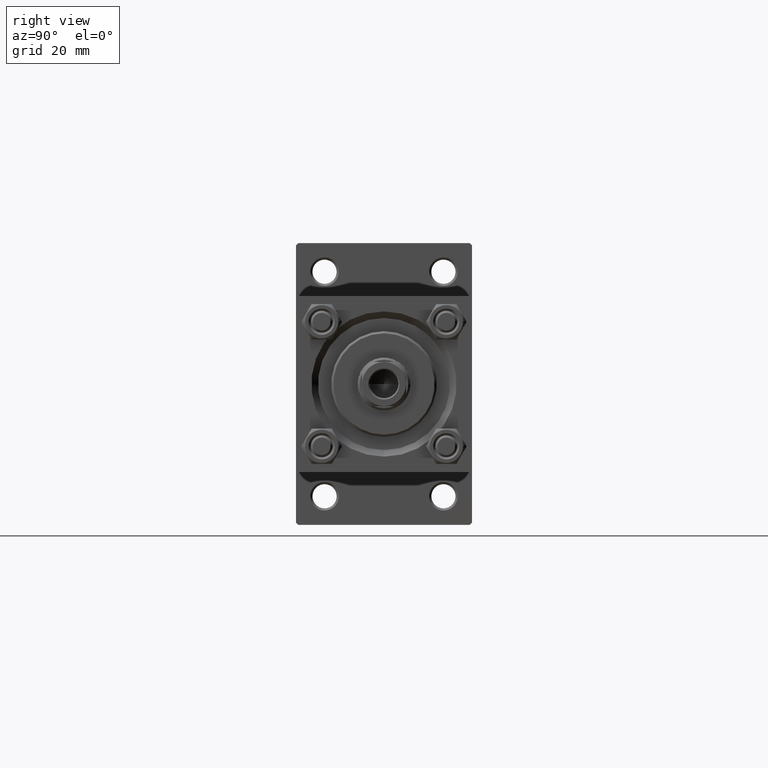
[diagram: clean part render]
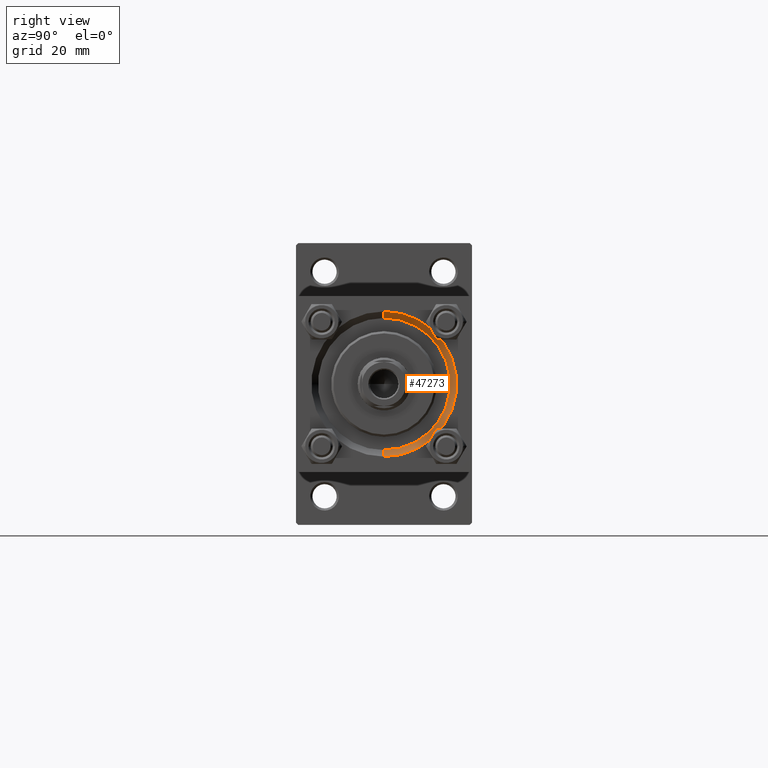
[diagram: same view with one face highlighted and labeled with its STEP entity id]
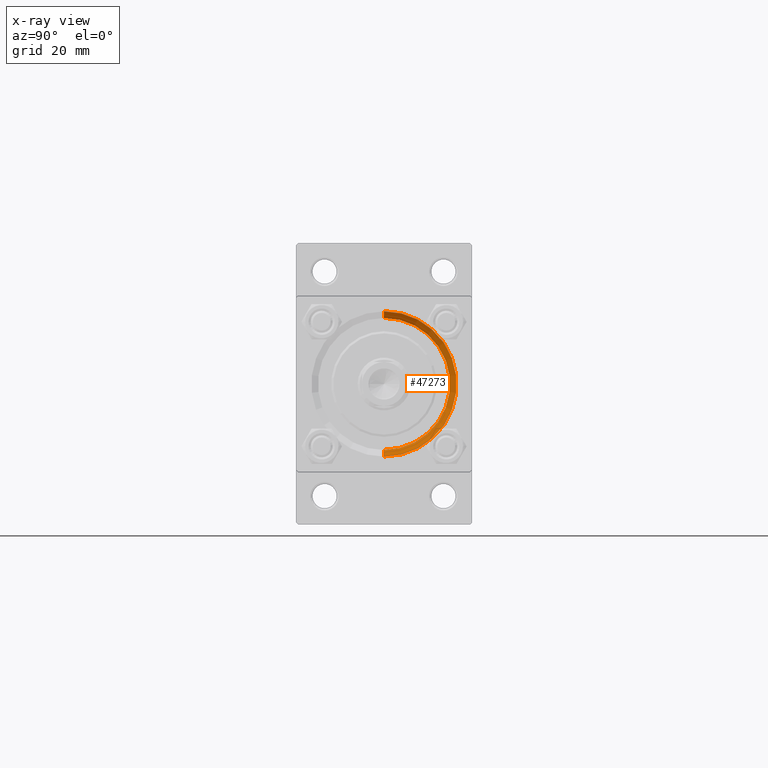
[diagram: x-ray of the same camera — body ghosted, the highlighted face saturated]
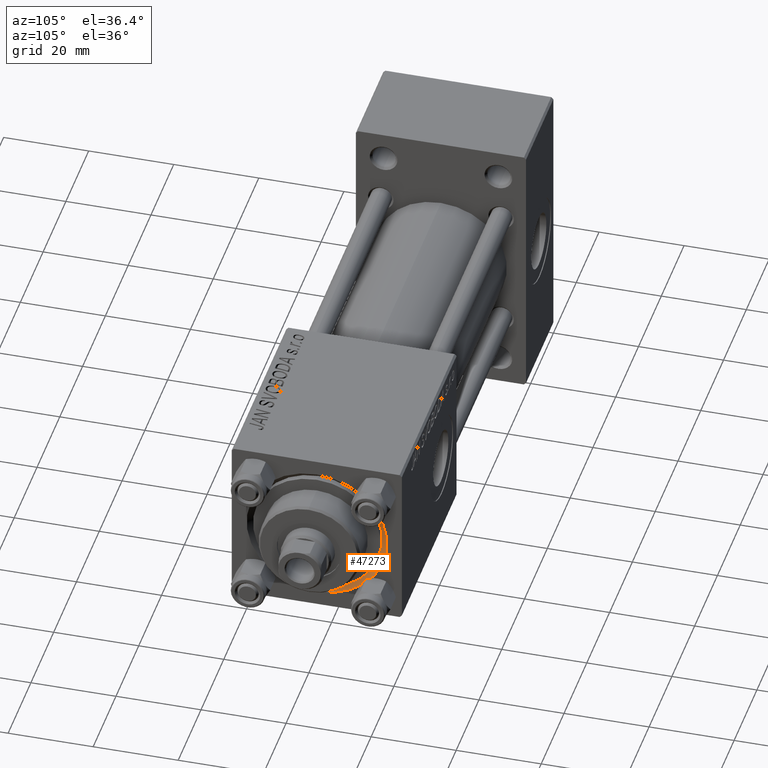
[diagram: same view with one face highlighted and labeled with its STEP entity id]
A machine part, right view. The second image highlights one B-rep face of the part: STEP entity #47273.
The next image is the same camera in x-ray: the body ghosted, the highlighted face saturated — about 0% of this face is hidden behind the body in this view.
A second angle (auxiliary view) of the same face is appended — the face is thin or edge-on in the first view.
In plain terms, the highlighted conical surface has half-angle 45 deg.
Its self-contained STEP definition (entity closure, byte-faithful):
#165 = CIRCLE ( 'NONE', #16254, 16.50000000000002842 ) ;
#410 = VERTEX_POINT ( 'NONE', #14507 ) ;
#2702 = CARTESIAN_POINT ( 'NONE',  ( 133.0000000000000000, 0.000000000000000000, -16.50000000000002842 ) ) ;
#4811 = VECTOR ( 'NONE', #5578, 1000.000000000000114 ) ;
#5578 = DIRECTION ( 'NONE',  ( 0.7071067811865474617, 0.000000000000000000, -0.7071067811865474617 ) ) ;
#8197 = CARTESIAN_POINT ( 'NONE',  ( 131.4999999999999716, 0.000000000000000000, 0.000000000000000000 ) ) ;
#9367 = CARTESIAN_POINT ( 'NONE',  ( 131.4999999999999716, 0.000000000000000000, -15.00000000000000000 ) ) ;
#9425 = DIRECTION ( 'NONE',  ( 1.000000000000000000, 0.000000000000000000, 0.000000000000000000 ) ) ;
#9763 = CIRCLE ( 'NONE', #30746, 15.00000000000000000 ) ;
#9935 = FACE_OUTER_BOUND ( 'NONE', #42377, .T. ) ;
#9968 = VECTOR ( 'NONE', #19424, 1000.000000000000114 ) ;
#11300 = ORIENTED_EDGE ( 'NONE', *, *, #45463, .F. ) ;
#14507 = CARTESIAN_POINT ( 'NONE',  ( 131.4999999999999716, 0.000000000000000000, -15.00000000000000000 ) ) ;
#14781 = ORIENTED_EDGE ( 'NONE', *, *, #16562, .F. ) ;
#15253 = ORIENTED_EDGE ( 'NONE', *, *, #16930, .F. ) ;
#15789 = DIRECTION ( 'NONE',  ( 1.000000000000000000, 0.000000000000000000, 0.000000000000000000 ) ) ;
#16254 = AXIS2_PLACEMENT_3D ( 'NONE', #31742, #27956, #20127 ) ;
#16562 = EDGE_CURVE ( 'NONE', #410, #42587, #9763, .T. ) ;
#16930 = EDGE_CURVE ( 'NONE', #30599, #24638, #165, .T. ) ;
#19424 = DIRECTION ( 'NONE',  ( 0.7071067811865474617, 8.659560562354932858E-17, 0.7071067811865474617 ) ) ;
#20127 = DIRECTION ( 'NONE',  ( 0.000000000000000000, 0.000000000000000000, 1.000000000000000000 ) ) ;
#24638 = VERTEX_POINT ( 'NONE', #2702 ) ;
#24840 = DIRECTION ( 'NONE',  ( 0.000000000000000000, 0.000000000000000000, -1.000000000000000000 ) ) ;
#27956 = DIRECTION ( 'NONE',  ( -1.000000000000000000, -0.000000000000000000, -0.000000000000000000 ) ) ;
#28126 = CARTESIAN_POINT ( 'NONE',  ( 131.4999999999999716, 0.000000000000000000, 0.000000000000000000 ) ) ;
#30599 = VERTEX_POINT ( 'NONE', #31394 ) ;
#30746 = AXIS2_PLACEMENT_3D ( 'NONE', #8197, #15789, #38027 ) ;
#31033 = LINE ( 'NONE', #42407, #9968 ) ;
#31394 = CARTESIAN_POINT ( 'NONE',  ( 133.0000000000000000, 2.020667218593135861E-15, 16.50000000000002842 ) ) ;
#31742 = CARTESIAN_POINT ( 'NONE',  ( 133.0000000000000000, 0.000000000000000000, 0.000000000000000000 ) ) ;
#32517 = ORIENTED_EDGE ( 'NONE', *, *, #36861, .T. ) ;
#33268 = AXIS2_PLACEMENT_3D ( 'NONE', #28126, #9425, #24840 ) ;
#36861 = EDGE_CURVE ( 'NONE', #410, #24638, #40931, .T. ) ;
#38027 = DIRECTION ( 'NONE',  ( 0.000000000000000000, 0.000000000000000000, 1.000000000000000000 ) ) ;
#39414 = CARTESIAN_POINT ( 'NONE',  ( 131.4999999999999716, 1.836970198721029589E-15, 15.00000000000000000 ) ) ;
#40931 = LINE ( 'NONE', #9367, #4811 ) ;
#42132 = CONICAL_SURFACE ( 'NONE', #33268, 15.00000000000000000, 0.7853981633974482790 ) ;
#42377 = EDGE_LOOP ( 'NONE', ( #11300, #14781, #32517, #15253 ) ) ;
#42407 = CARTESIAN_POINT ( 'NONE',  ( 131.4999999999999716, 1.836970198721029589E-15, 15.00000000000000000 ) ) ;
#42587 = VERTEX_POINT ( 'NONE', #39414 ) ;
#45463 = EDGE_CURVE ( 'NONE', #42587, #30599, #31033, .T. ) ;
#47273 = ADVANCED_FACE ( 'NONE', ( #9935 ), #42132, .F. ) ;